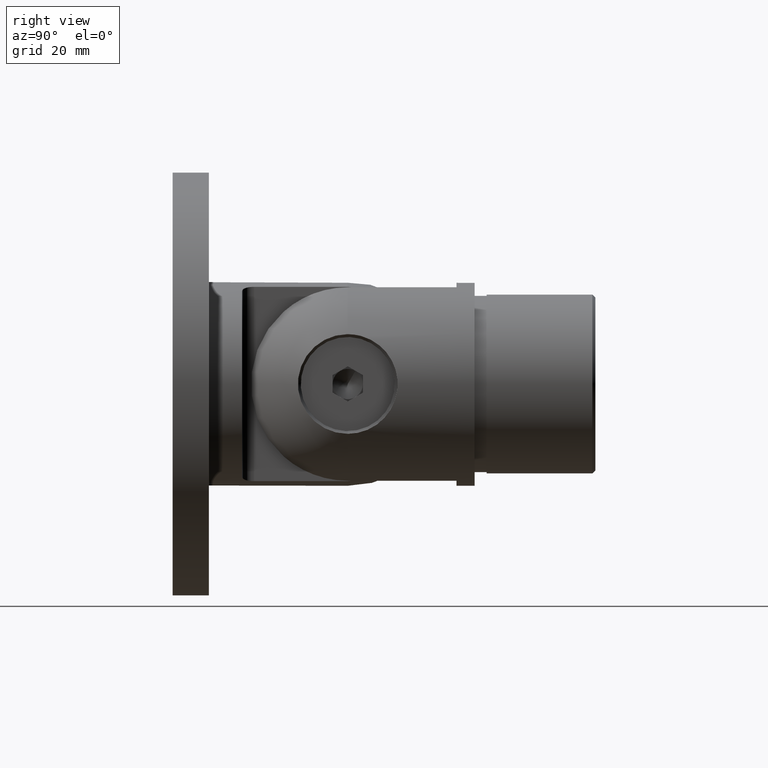
[diagram: clean part render]
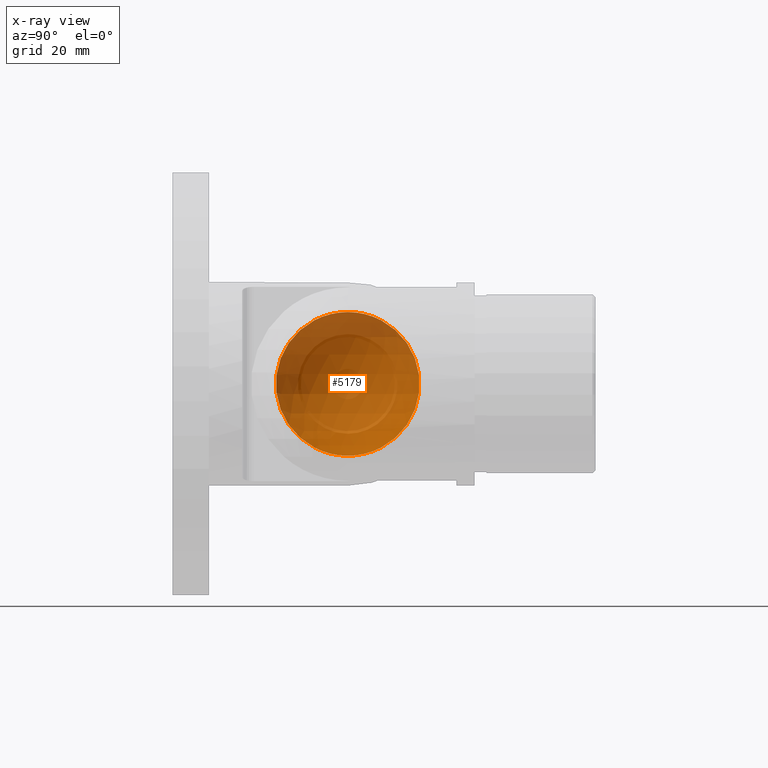
[diagram: x-ray — body ghosted, one internal face saturated and labeled with its STEP entity id]
A machine part, right view, then the same camera in x-ray: the body is ghosted and one INTERNAL B-rep face — a face not visible from any outside direction — is saturated and labeled: STEP entity #5179.
In plain terms, the highlighted spherical surface has radius 13 mm.
Its self-contained STEP definition (entity closure, byte-faithful):
#541 = SPHERICAL_SURFACE ( 'NONE', #9323, 13.00000000000000178 ) ;
#668 = DIRECTION ( 'NONE',  ( -1.000000000000000000, 0.000000000000000000, 0.000000000000000000 ) ) ;
#1590 = DIRECTION ( 'NONE',  ( -0.000000000000000000, -0.000000000000000000, -1.000000000000000000 ) ) ;
#3228 = DIRECTION ( 'NONE',  ( 0.000000000000000000, 0.000000000000000000, 1.000000000000000000 ) ) ;
#4080 = EDGE_LOOP ( 'NONE', ( #8455 ) ) ;
#4745 = AXIS2_PLACEMENT_3D ( 'NONE', #11791, #668, #3228 ) ;
#4879 = VERTEX_POINT ( 'NONE', #6820 ) ;
#5179 = ADVANCED_FACE ( 'NONE', ( #13924 ), #541, .F. ) ;
#5489 = CARTESIAN_POINT ( 'NONE',  ( 0.000000000000000000, 16.85000000000000853, 0.000000000000000000 ) ) ;
#6520 = CIRCLE ( 'NONE', #4745, 11.89274989226630019 ) ;
#6662 = DIRECTION ( 'NONE',  ( -1.000000000000000000, 0.000000000000000000, 0.000000000000000000 ) ) ;
#6820 = CARTESIAN_POINT ( 'NONE',  ( -5.249999999999995559, 16.85000000000000853, 11.89274989226630019 ) ) ;
#8455 = ORIENTED_EDGE ( 'NONE', *, *, #10317, .F. ) ;
#9323 = AXIS2_PLACEMENT_3D ( 'NONE', #5489, #1590, #6662 ) ;
#10317 = EDGE_CURVE ( 'NONE', #4879, #4879, #6520, .T. ) ;
#11791 = CARTESIAN_POINT ( 'NONE',  ( -5.249999999999995559, 16.85000000000000853, 0.000000000000000000 ) ) ;
#13924 = FACE_OUTER_BOUND ( 'NONE', #4080, .T. ) ;